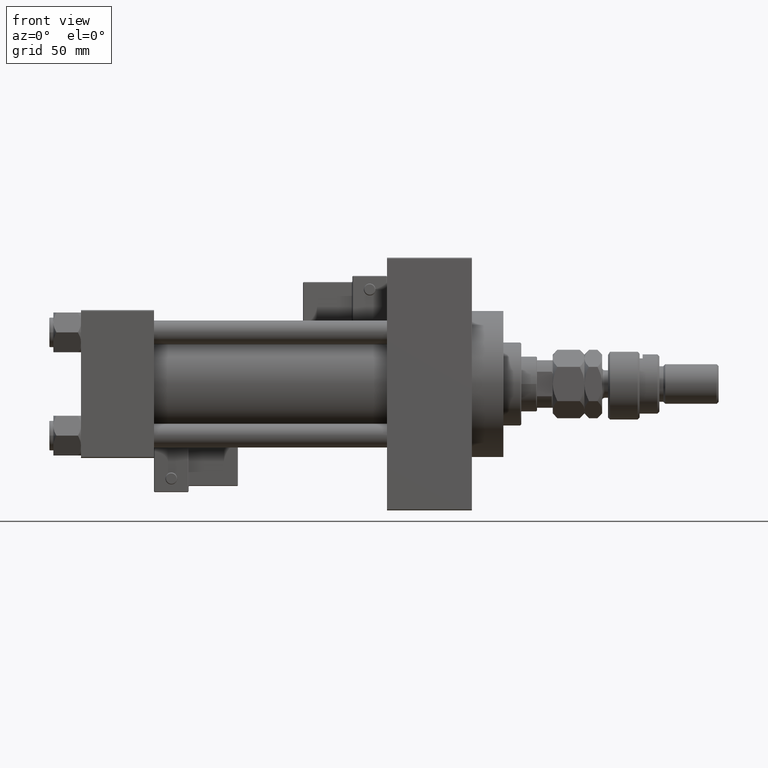
[diagram: clean part render]
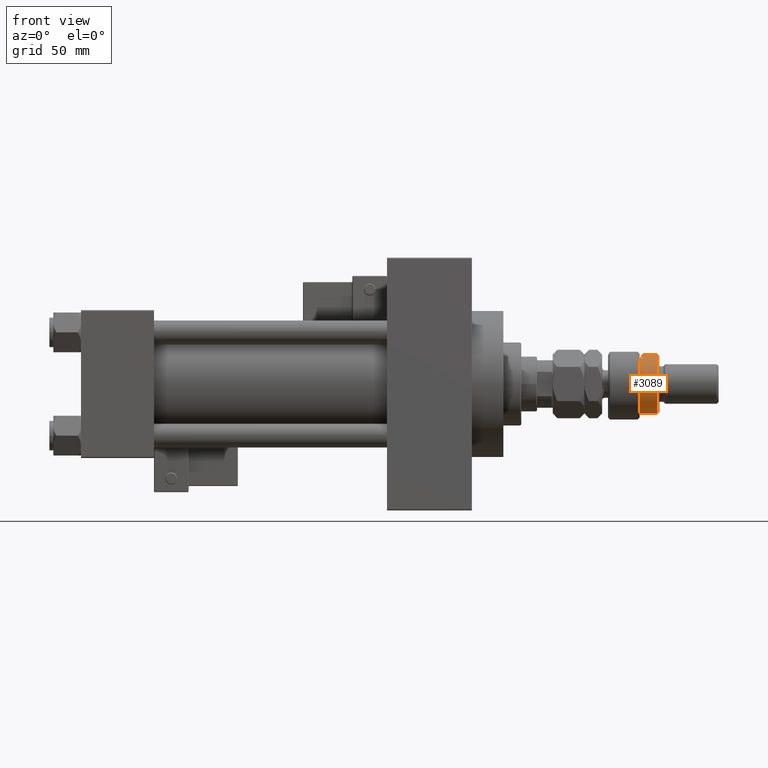
[diagram: same view with one face highlighted and labeled with its STEP entity id]
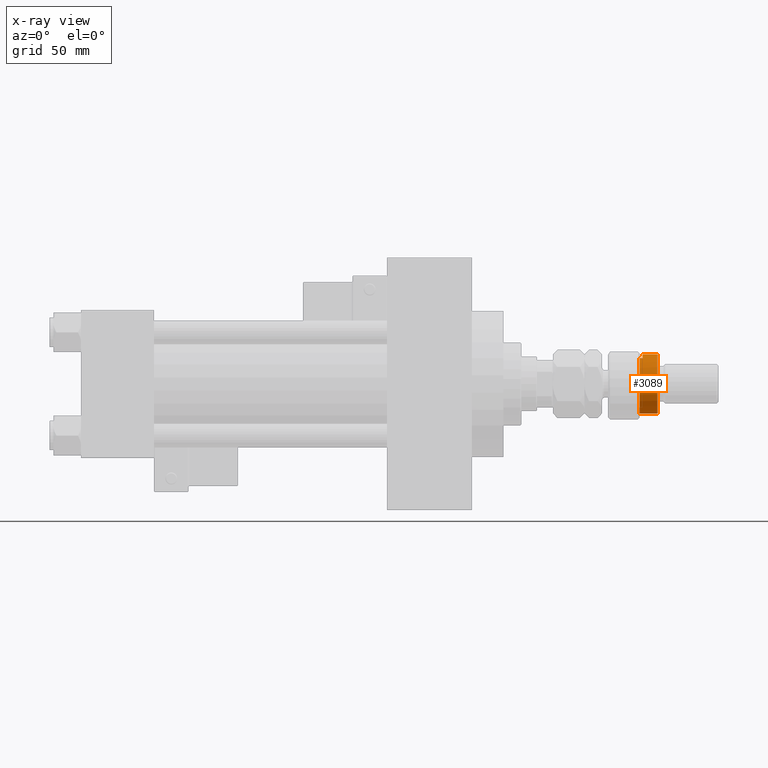
[diagram: x-ray of the same camera — body ghosted, the highlighted face saturated]
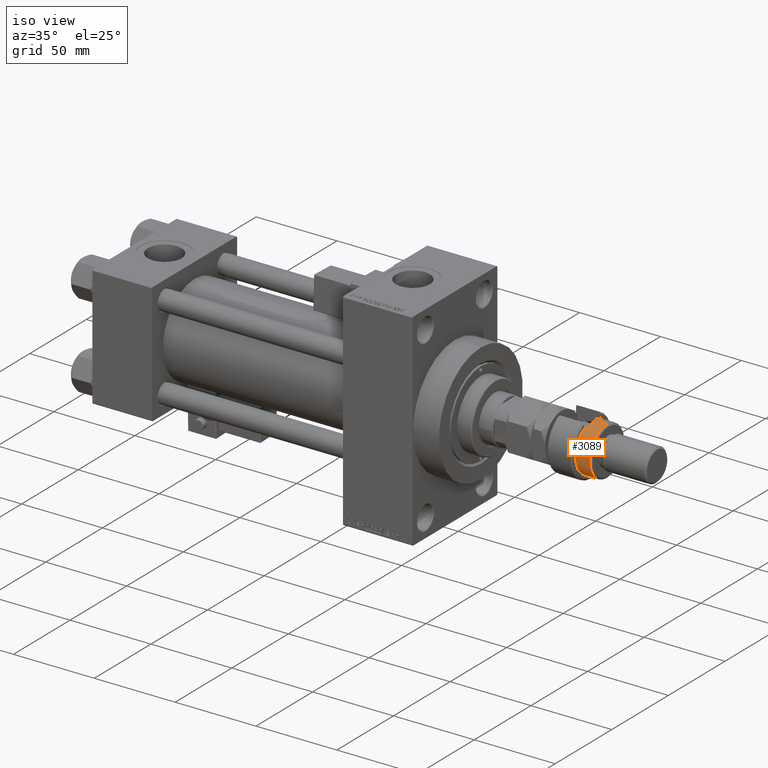
[diagram: same view with one face highlighted and labeled with its STEP entity id]
A machine part, front view. The second image highlights one B-rep face of the part: STEP entity #3089.
The next image is the same camera in x-ray: the body ghosted, the highlighted face saturated — about 0% of this face is hidden behind the body in this view.
A second angle (iso view) of the same face is appended — the face is thin or edge-on in the first view.
In plain terms, the highlighted cylindrical surface (edge-blend (fillet) strip) has radius 15 mm, axis along (-1, -0, 0).
Its self-contained STEP definition (entity closure, byte-faithful):
#711 = EDGE_CURVE ( 'NONE', #21207, #41275, #37035, .T. ) ;
#871 = CARTESIAN_POINT ( 'NONE',  ( 0.000000000000000000, 0.000000000000000000, 24.99999999999997868 ) ) ;
#1159 = EDGE_CURVE ( 'NONE', #18270, #52130, #18315, .T. ) ;
#2928 = EDGE_CURVE ( 'NONE', #36938, #21207, #24270, .T. ) ;
#3089 = ADVANCED_FACE ( 'NONE', ( #9390 ), #25553, .T. ) ;
#5010 = DIRECTION ( 'NONE',  ( 0.000000000000000000, 0.000000000000000000, -1.000000000000000000 ) ) ;
#6082 = LINE ( 'NONE', #13221, #26080 ) ;
#6466 = AXIS2_PLACEMENT_3D ( 'NONE', #41827, #5010, #20653 ) ;
#6571 = AXIS2_PLACEMENT_3D ( 'NONE', #21575, #37730, #17590 ) ;
#7335 = CARTESIAN_POINT ( 'NONE',  ( -12.99038105676658006, -7.500000000000000000, 17.50000000000000000 ) ) ;
#7342 = CIRCLE ( 'NONE', #6466, 15.00000000000000000 ) ;
#8265 = AXIS2_PLACEMENT_3D ( 'NONE', #871, #17839, #25796 ) ;
#8406 = CARTESIAN_POINT ( 'NONE',  ( 0.000000000000000000, 0.000000000000000000, 16.00000000000000000 ) ) ;
#9201 = DIRECTION ( 'NONE',  ( -0.000000000000000000, -0.000000000000000000, -1.000000000000000000 ) ) ;
#9390 = FACE_OUTER_BOUND ( 'NONE', #49185, .T. ) ;
#13221 = CARTESIAN_POINT ( 'NONE',  ( -15.00000000000000000, 0.000000000000000000, 26.00000000000000355 ) ) ;
#15900 = AXIS2_PLACEMENT_3D ( 'NONE', #8406, #32507, #47917 ) ;
#17506 = VECTOR ( 'NONE', #28248, 1000.000000000000000 ) ;
#17590 = DIRECTION ( 'NONE',  ( -1.000000000000000000, 0.000000000000000000, 0.000000000000000000 ) ) ;
#17839 = DIRECTION ( 'NONE',  ( 0.000000000000000000, 0.000000000000000000, -1.000000000000000000 ) ) ;
#18001 = DIRECTION ( 'NONE',  ( -0.000000000000000000, -0.000000000000000000, -1.000000000000000000 ) ) ;
#18270 = VERTEX_POINT ( 'NONE', #40122 ) ;
#18315 = CIRCLE ( 'NONE', #8265, 15.00000000000000000 ) ;
#20653 = DIRECTION ( 'NONE',  ( -1.000000000000000000, 0.000000000000000000, 0.000000000000000000 ) ) ;
#21207 = VERTEX_POINT ( 'NONE', #34264 ) ;
#21575 = CARTESIAN_POINT ( 'NONE',  ( 0.000000000000000000, 0.000000000000000000, 26.00000000000000355 ) ) ;
#23232 = ORIENTED_EDGE ( 'NONE', *, *, #28875, .F. ) ;
#24270 = LINE ( 'NONE', #41194, #17506 ) ;
#25553 = CYLINDRICAL_SURFACE ( 'NONE', #6571, 15.00000000000000000 ) ;
#25796 = DIRECTION ( 'NONE',  ( 1.000000000000000000, 0.000000000000000000, 0.000000000000000000 ) ) ;
#26080 = VECTOR ( 'NONE', #18001, 1000.000000000000000 ) ;
#28248 = DIRECTION ( 'NONE',  ( -0.000000000000000000, -0.000000000000000000, -1.000000000000000000 ) ) ;
#28875 = EDGE_CURVE ( 'NONE', #18270, #41275, #41789, .T. ) ;
#32507 = DIRECTION ( 'NONE',  ( 0.000000000000000000, 0.000000000000000000, 1.000000000000000000 ) ) ;
#32798 = CARTESIAN_POINT ( 'NONE',  ( -15.00000000000000000, 0.000000000000000000, 24.99999999999997868 ) ) ;
#34264 = CARTESIAN_POINT ( 'NONE',  ( -12.99038105676658006, -7.500000000000000000, 16.00000000000000000 ) ) ;
#36146 = CARTESIAN_POINT ( 'NONE',  ( 15.00000000000000000, 1.836970198721029589E-15, 16.00000000000000000 ) ) ;
#36938 = VERTEX_POINT ( 'NONE', #7335 ) ;
#37035 = CIRCLE ( 'NONE', #15900, 15.00000000000000000 ) ;
#37508 = ORIENTED_EDGE ( 'NONE', *, *, #711, .T. ) ;
#37702 = EDGE_CURVE ( 'NONE', #52130, #43921, #6082, .T. ) ;
#37730 = DIRECTION ( 'NONE',  ( -0.000000000000000000, -0.000000000000000000, -1.000000000000000000 ) ) ;
#39263 = CARTESIAN_POINT ( 'NONE',  ( -15.00000000000000000, 0.000000000000000000, 17.50000000000000000 ) ) ;
#40122 = CARTESIAN_POINT ( 'NONE',  ( 15.00000000000000000, 1.836970198721029589E-15, 24.99999999999997868 ) ) ;
#41194 = CARTESIAN_POINT ( 'NONE',  ( -12.99038105676658006, -7.500000000000000000, 26.00000000000000355 ) ) ;
#41275 = VERTEX_POINT ( 'NONE', #36146 ) ;
#41526 = CARTESIAN_POINT ( 'NONE',  ( 15.00000000000000000, 1.836970198721029589E-15, 26.00000000000000355 ) ) ;
#41789 = LINE ( 'NONE', #41526, #46160 ) ;
#41827 = CARTESIAN_POINT ( 'NONE',  ( 0.000000000000000000, 0.000000000000000000, 17.50000000000000000 ) ) ;
#42775 = ORIENTED_EDGE ( 'NONE', *, *, #1159, .T. ) ;
#42816 = ORIENTED_EDGE ( 'NONE', *, *, #2928, .T. ) ;
#43921 = VERTEX_POINT ( 'NONE', #39263 ) ;
#46160 = VECTOR ( 'NONE', #9201, 1000.000000000000000 ) ;
#47865 = EDGE_CURVE ( 'NONE', #36938, #43921, #7342, .T. ) ;
#47917 = DIRECTION ( 'NONE',  ( 1.000000000000000000, 0.000000000000000000, 0.000000000000000000 ) ) ;
#49185 = EDGE_LOOP ( 'NONE', ( #23232, #42775, #49895, #52329, #42816, #37508 ) ) ;
#49895 = ORIENTED_EDGE ( 'NONE', *, *, #37702, .T. ) ;
#52130 = VERTEX_POINT ( 'NONE', #32798 ) ;
#52329 = ORIENTED_EDGE ( 'NONE', *, *, #47865, .F. ) ;